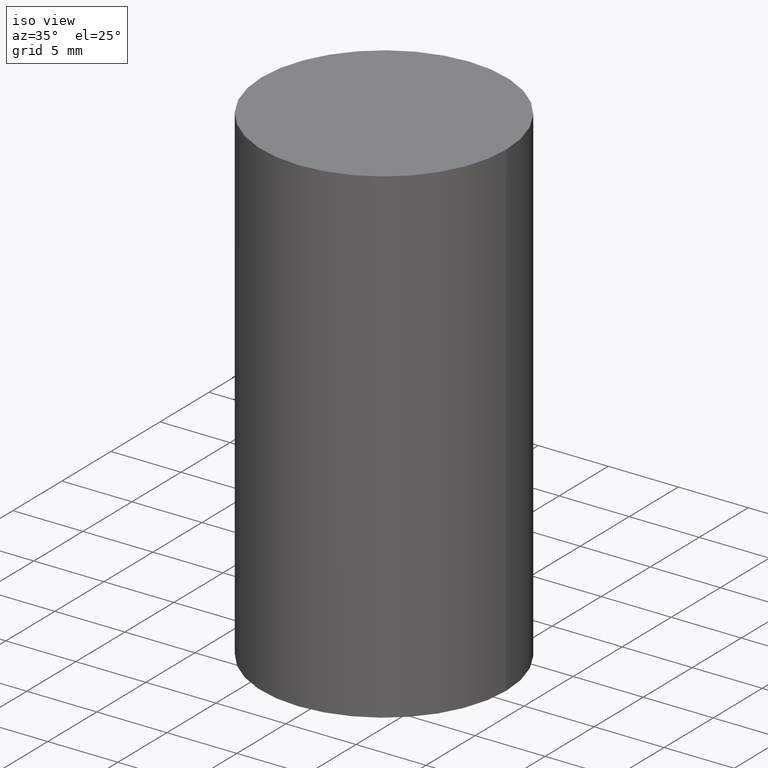
[diagram: clean part render]
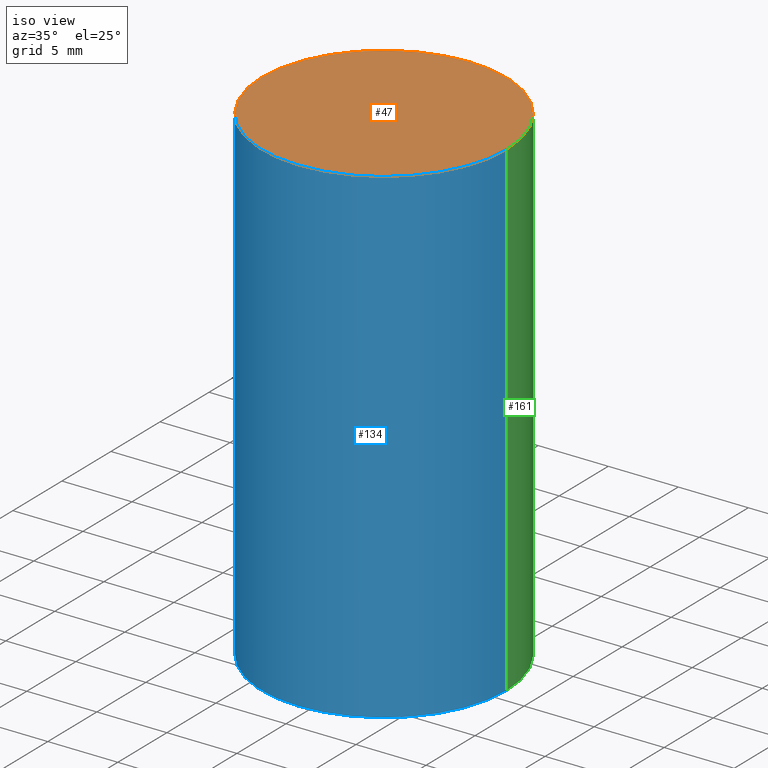
[diagram: same view with three faces highlighted in distinct colors, each labeled with its STEP entity id]
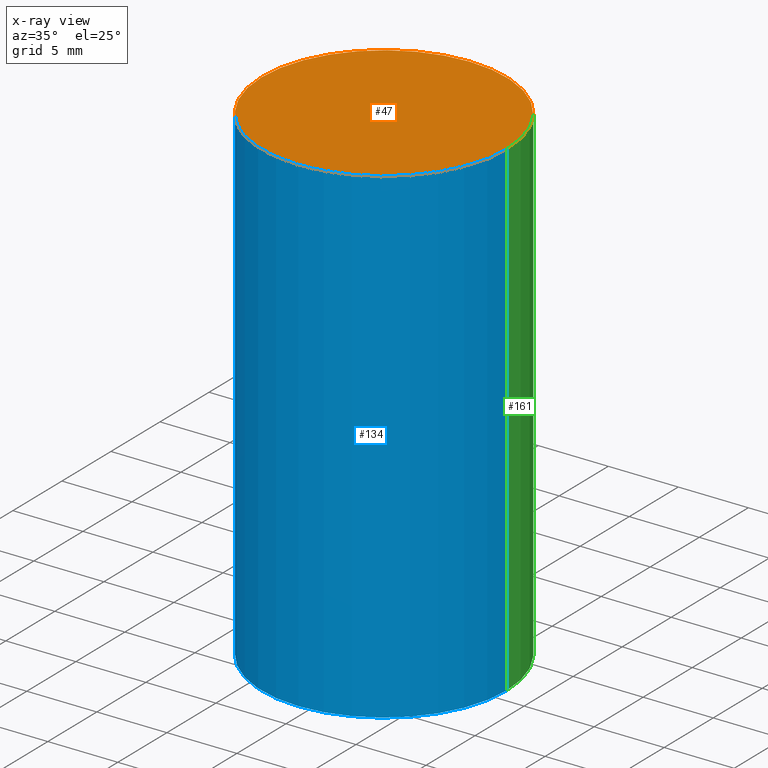
[diagram: x-ray of the same camera — body ghosted, the three highlighted faces saturated]
A machine part, iso view with three faces highlighted in distinct colors.
The next image is the same camera in x-ray (body ghosted, the three faces saturated) — at least one of them is partly hidden behind the body in this view.
Their STEP definitions:

[orange] entity #47 — the highlighted planar face has unit normal (0, -0, -1).
#2 = CARTESIAN_POINT ( 'NONE',  ( 2.400393420454656943E-15, 0.3437499999999995559, -0.1250000000000014710 ) ) ;
#5 = DIRECTION ( 'NONE',  ( 2.438088387897960049E-29, -3.491481338843145188E-15, -1.000000000000000000 ) ) ;
#8 = DIRECTION ( 'NONE',  ( -2.445468806185136597E-29, 3.491481338843145583E-15, 1.000000000000000000 ) ) ;
#17 = CARTESIAN_POINT ( 'NONE',  ( 3.056836007731426351E-30, -4.364351673553940360E-16, -0.1250000000000002498 ) ) ;
#19 = PLANE ( 'NONE',  #41 ) ;
#24 = AXIS2_PLACEMENT_3D ( 'NONE', #77, #8, #157 ) ;
#41 = AXIS2_PLACEMENT_3D ( 'NONE', #2, #5, #120 ) ;
#47 = ADVANCED_FACE ( 'NONE', ( #155 ), #19, .F. ) ;
#56 = CIRCLE ( 'NONE', #139, 0.3437500000000000000 ) ;
#59 = VERTEX_POINT ( 'NONE', #102 ) ;
#73 = VERTEX_POINT ( 'NONE', #141 ) ;
#77 = CARTESIAN_POINT ( 'NONE',  ( 3.056836007731426351E-30, -4.364351673553940360E-16, -0.1250000000000002498 ) ) ;
#102 = CARTESIAN_POINT ( 'NONE',  ( -0.3437500000000000000, -3.943379336347120132E-16, -0.1250000000000002498 ) ) ;
#105 = CIRCLE ( 'NONE', #24, 0.3437500000000000000 ) ;
#114 = EDGE_CURVE ( 'NONE', #59, #73, #56, .T. ) ;
#116 = ORIENTED_EDGE ( 'NONE', *, *, #114, .T. ) ;
#117 = ORIENTED_EDGE ( 'NONE', *, *, #176, .T. ) ;
#120 = DIRECTION ( 'NONE',  ( -1.000000000000000000, 6.982962677686265922E-15, -4.876176775795935793E-29 ) ) ;
#128 = DIRECTION ( 'NONE',  ( 1.000000000000000000, -6.982962677686265922E-15, 0.000000000000000000 ) ) ;
#139 = AXIS2_PLACEMENT_3D ( 'NONE', #17, #170, #128 ) ;
#141 = CARTESIAN_POINT ( 'NONE',  ( 0.3437500000000000000, -2.836828587810047823E-15, -0.1250000000000002498 ) ) ;
#155 = FACE_OUTER_BOUND ( 'NONE', #168, .T. ) ;
#157 = DIRECTION ( 'NONE',  ( 1.000000000000000000, -6.982962677686265922E-15, 0.000000000000000000 ) ) ;
#168 = EDGE_LOOP ( 'NONE', ( #117, #116 ) ) ;
#170 = DIRECTION ( 'NONE',  ( -2.445468806185136597E-29, 3.491481338843145583E-15, 1.000000000000000000 ) ) ;
#176 = EDGE_CURVE ( 'NONE', #73, #59, #105, .T. ) ;

[blue] entity #134 — the highlighted cylindrical surface (partial cylindrical patch) has radius 8.7312 mm, axis along (-0, 0, 1).
#3 = CYLINDRICAL_SURFACE ( 'NONE', #31, 0.3437500000000000000 ) ;
#4 = DIRECTION ( 'NONE',  ( -2.445468806185136877E-29, 3.491481338843145188E-15, 1.000000000000000000 ) ) ;
#17 = CARTESIAN_POINT ( 'NONE',  ( 3.056836007731426351E-30, -4.364351673553940360E-16, -0.1250000000000002498 ) ) ;
#21 = VECTOR ( 'NONE', #4, 39.37007874015748143 ) ;
#30 = LINE ( 'NONE', #83, #21 ) ;
#31 = AXIS2_PLACEMENT_3D ( 'NONE', #60, #153, #86 ) ;
#42 = DIRECTION ( 'NONE',  ( -2.445468806185136597E-29, 3.491481338843145583E-15, 1.000000000000000000 ) ) ;
#46 = DIRECTION ( 'NONE',  ( -2.445468806185136877E-29, 3.491481338843145188E-15, 1.000000000000000000 ) ) ;
#52 = CIRCLE ( 'NONE', #133, 0.3437500000000000000 ) ;
#56 = CIRCLE ( 'NONE', #139, 0.3437500000000000000 ) ;
#59 = VERTEX_POINT ( 'NONE', #102 ) ;
#60 = CARTESIAN_POINT ( 'NONE',  ( 0.000000000000000000, 0.000000000000000000, 0.000000000000000000 ) ) ;
#61 = CARTESIAN_POINT ( 'NONE',  ( -0.3437500000000000000, -3.943379336347116681E-16, -1.500000000000000222 ) ) ;
#70 = ORIENTED_EDGE ( 'NONE', *, *, #138, .T. ) ;
#73 = VERTEX_POINT ( 'NONE', #141 ) ;
#76 = ORIENTED_EDGE ( 'NONE', *, *, #114, .F. ) ;
#81 = VECTOR ( 'NONE', #46, 39.37007874015748143 ) ;
#83 = CARTESIAN_POINT ( 'NONE',  ( -0.3437500000000000000, 2.442490654175344389E-15, -1.690883937275123635E-29 ) ) ;
#85 = VERTEX_POINT ( 'NONE', #136 ) ;
#86 = DIRECTION ( 'NONE',  ( 1.000000000000000000, -6.982962677686265922E-15, 4.876176775795935793E-29 ) ) ;
#89 = VERTEX_POINT ( 'NONE', #61 ) ;
#95 = EDGE_CURVE ( 'NONE', #89, #85, #52, .T. ) ;
#99 = DIRECTION ( 'NONE',  ( 1.000000000000000000, -6.982962677686265922E-15, 0.000000000000000000 ) ) ;
#102 = CARTESIAN_POINT ( 'NONE',  ( -0.3437500000000000000, -3.943379336347120132E-16, -0.1250000000000002498 ) ) ;
#106 = EDGE_CURVE ( 'NONE', #89, #59, #30, .T. ) ;
#114 = EDGE_CURVE ( 'NONE', #59, #73, #56, .T. ) ;
#119 = LINE ( 'NONE', #171, #81 ) ;
#128 = DIRECTION ( 'NONE',  ( 1.000000000000000000, -6.982962677686265922E-15, 0.000000000000000000 ) ) ;
#129 = EDGE_LOOP ( 'NONE', ( #130, #137, #70, #76 ) ) ;
#130 = ORIENTED_EDGE ( 'NONE', *, *, #106, .F. ) ;
#133 = AXIS2_PLACEMENT_3D ( 'NONE', #167, #42, #99 ) ;
#134 = ADVANCED_FACE ( 'NONE', ( #154 ), #3, .T. ) ;
#136 = CARTESIAN_POINT ( 'NONE',  ( 0.3437500000000000000, -7.637615428719372358E-15, -1.500000000000000222 ) ) ;
#137 = ORIENTED_EDGE ( 'NONE', *, *, #95, .T. ) ;
#138 = EDGE_CURVE ( 'NONE', #85, #73, #119, .T. ) ;
#139 = AXIS2_PLACEMENT_3D ( 'NONE', #17, #170, #128 ) ;
#141 = CARTESIAN_POINT ( 'NONE',  ( 0.3437500000000000000, -2.836828587810047823E-15, -0.1250000000000002498 ) ) ;
#153 = DIRECTION ( 'NONE',  ( -2.445468806185136597E-29, 3.491481338843145583E-15, 1.000000000000000000 ) ) ;
#154 = FACE_OUTER_BOUND ( 'NONE', #129, .T. ) ;
#167 = CARTESIAN_POINT ( 'NONE',  ( 3.668203209277704895E-29, -5.237222008264718177E-15, -1.500000000000000222 ) ) ;
#170 = DIRECTION ( 'NONE',  ( -2.445468806185136597E-29, 3.491481338843145583E-15, 1.000000000000000000 ) ) ;
#171 = CARTESIAN_POINT ( 'NONE',  ( 0.3437500000000000000, -2.400393420454653787E-15, 1.676185766679852859E-29 ) ) ;

[green] entity #161 — the highlighted cylindrical surface (partial cylindrical patch) has radius 8.7312 mm, axis along (-0, 0, 1).
#4 = DIRECTION ( 'NONE',  ( -2.445468806185136877E-29, 3.491481338843145188E-15, 1.000000000000000000 ) ) ;
#8 = DIRECTION ( 'NONE',  ( -2.445468806185136597E-29, 3.491481338843145583E-15, 1.000000000000000000 ) ) ;
#20 = CARTESIAN_POINT ( 'NONE',  ( 0.000000000000000000, 0.000000000000000000, 0.000000000000000000 ) ) ;
#21 = VECTOR ( 'NONE', #4, 39.37007874015748143 ) ;
#24 = AXIS2_PLACEMENT_3D ( 'NONE', #77, #8, #157 ) ;
#27 = AXIS2_PLACEMENT_3D ( 'NONE', #33, #34, #115 ) ;
#30 = LINE ( 'NONE', #83, #21 ) ;
#33 = CARTESIAN_POINT ( 'NONE',  ( 3.668203209277704895E-29, -5.237222008264718177E-15, -1.500000000000000222 ) ) ;
#34 = DIRECTION ( 'NONE',  ( -2.445468806185136597E-29, 3.491481338843145583E-15, 1.000000000000000000 ) ) ;
#46 = DIRECTION ( 'NONE',  ( -2.445468806185136877E-29, 3.491481338843145188E-15, 1.000000000000000000 ) ) ;
#48 = ORIENTED_EDGE ( 'NONE', *, *, #176, .F. ) ;
#58 = EDGE_LOOP ( 'NONE', ( #74, #151, #48, #103 ) ) ;
#59 = VERTEX_POINT ( 'NONE', #102 ) ;
#61 = CARTESIAN_POINT ( 'NONE',  ( -0.3437500000000000000, -3.943379336347116681E-16, -1.500000000000000222 ) ) ;
#65 = DIRECTION ( 'NONE',  ( -2.445468806185136597E-29, 3.491481338843145583E-15, 1.000000000000000000 ) ) ;
#68 = CIRCLE ( 'NONE', #27, 0.3437500000000000000 ) ;
#71 = AXIS2_PLACEMENT_3D ( 'NONE', #20, #65, #78 ) ;
#73 = VERTEX_POINT ( 'NONE', #141 ) ;
#74 = ORIENTED_EDGE ( 'NONE', *, *, #82, .T. ) ;
#77 = CARTESIAN_POINT ( 'NONE',  ( 3.056836007731426351E-30, -4.364351673553940360E-16, -0.1250000000000002498 ) ) ;
#78 = DIRECTION ( 'NONE',  ( 1.000000000000000000, -6.982962677686265922E-15, 4.876176775795935793E-29 ) ) ;
#81 = VECTOR ( 'NONE', #46, 39.37007874015748143 ) ;
#82 = EDGE_CURVE ( 'NONE', #85, #89, #68, .T. ) ;
#83 = CARTESIAN_POINT ( 'NONE',  ( -0.3437500000000000000, 2.442490654175344389E-15, -1.690883937275123635E-29 ) ) ;
#85 = VERTEX_POINT ( 'NONE', #136 ) ;
#89 = VERTEX_POINT ( 'NONE', #61 ) ;
#97 = CYLINDRICAL_SURFACE ( 'NONE', #71, 0.3437500000000000000 ) ;
#102 = CARTESIAN_POINT ( 'NONE',  ( -0.3437500000000000000, -3.943379336347120132E-16, -0.1250000000000002498 ) ) ;
#103 = ORIENTED_EDGE ( 'NONE', *, *, #138, .F. ) ;
#105 = CIRCLE ( 'NONE', #24, 0.3437500000000000000 ) ;
#106 = EDGE_CURVE ( 'NONE', #89, #59, #30, .T. ) ;
#108 = FACE_OUTER_BOUND ( 'NONE', #58, .T. ) ;
#115 = DIRECTION ( 'NONE',  ( 1.000000000000000000, -6.982962677686265922E-15, 0.000000000000000000 ) ) ;
#119 = LINE ( 'NONE', #171, #81 ) ;
#136 = CARTESIAN_POINT ( 'NONE',  ( 0.3437500000000000000, -7.637615428719372358E-15, -1.500000000000000222 ) ) ;
#138 = EDGE_CURVE ( 'NONE', #85, #73, #119, .T. ) ;
#141 = CARTESIAN_POINT ( 'NONE',  ( 0.3437500000000000000, -2.836828587810047823E-15, -0.1250000000000002498 ) ) ;
#151 = ORIENTED_EDGE ( 'NONE', *, *, #106, .T. ) ;
#157 = DIRECTION ( 'NONE',  ( 1.000000000000000000, -6.982962677686265922E-15, 0.000000000000000000 ) ) ;
#161 = ADVANCED_FACE ( 'NONE', ( #108 ), #97, .T. ) ;
#171 = CARTESIAN_POINT ( 'NONE',  ( 0.3437500000000000000, -2.400393420454653787E-15, 1.676185766679852859E-29 ) ) ;
#176 = EDGE_CURVE ( 'NONE', #73, #59, #105, .T. ) ;